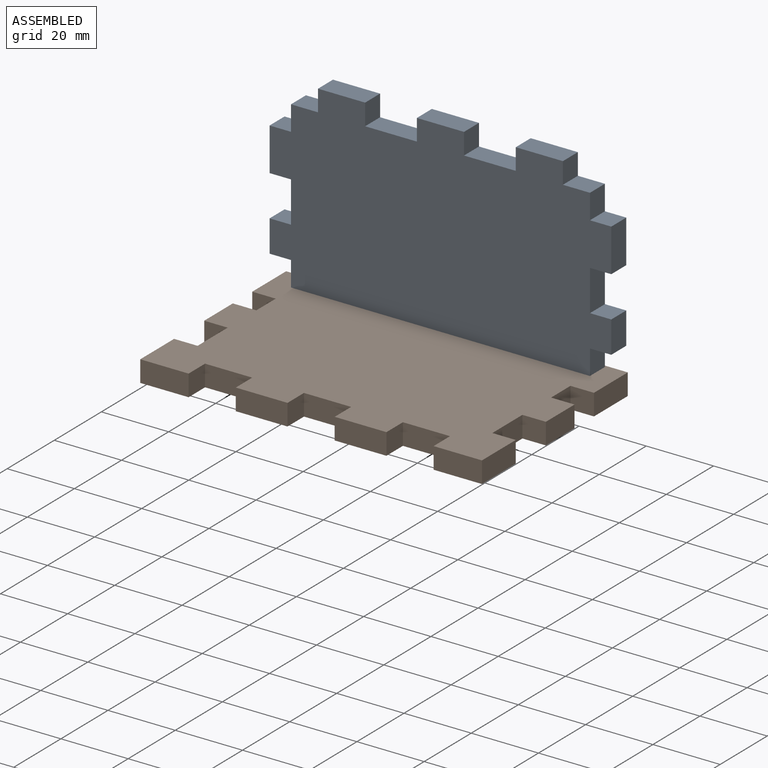
[diagram: assembled view]
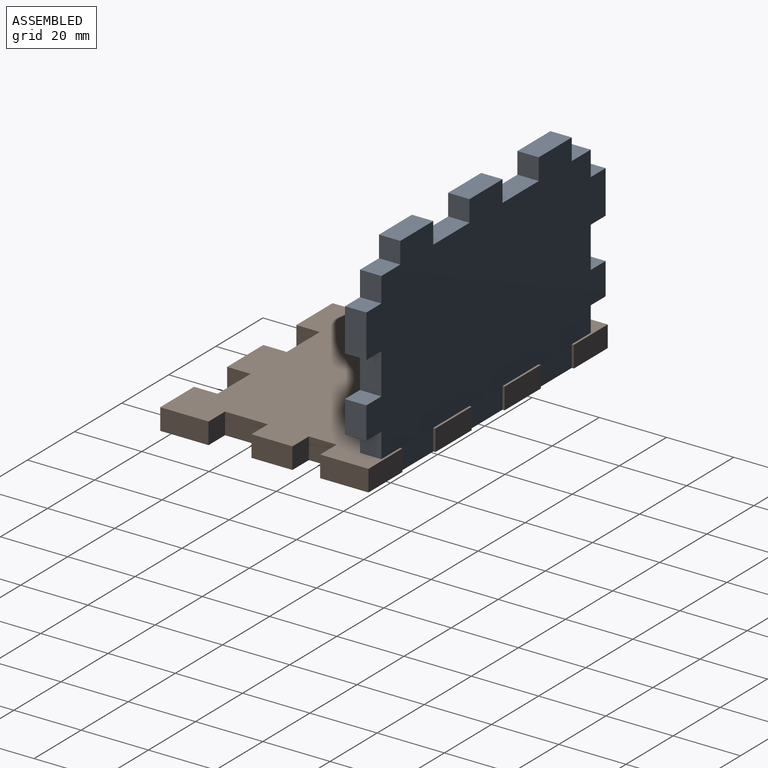
[diagram: assembled view, second angle]
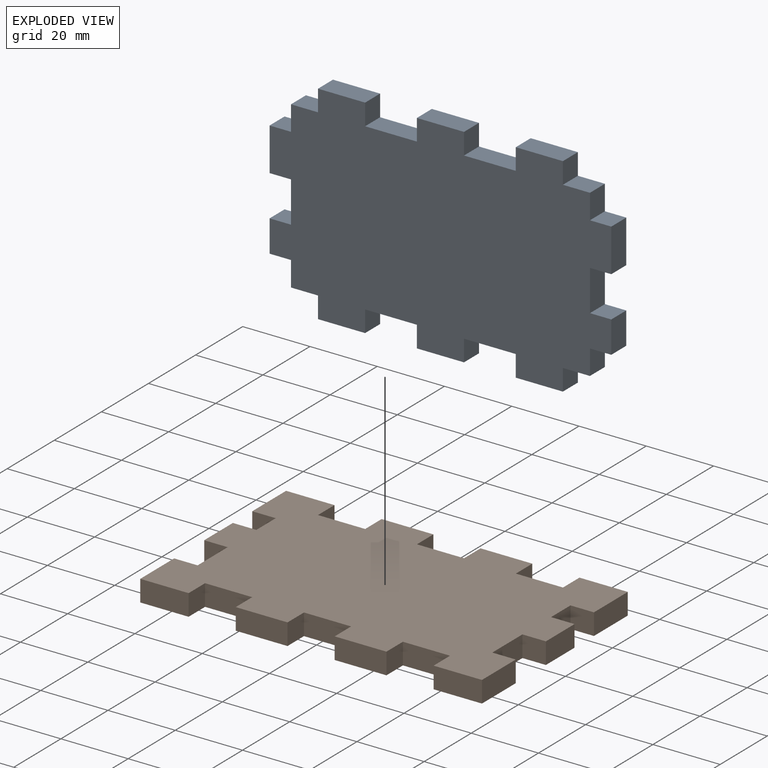
[diagram: exploded view]
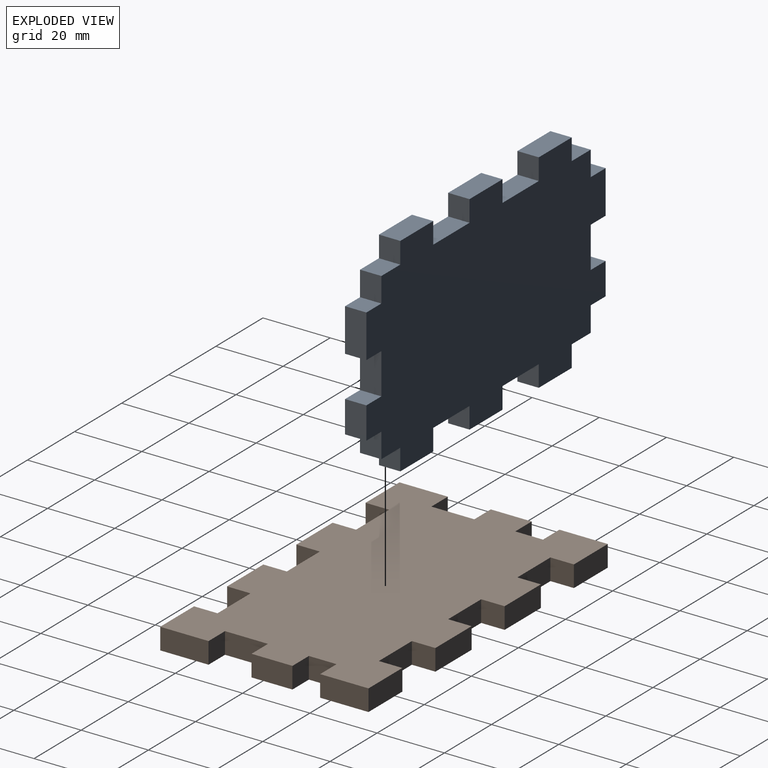
[diagram: exploded view, second angle]
ASSEMBLY  parts=2 mates=3
PART A: 46 faces, bbox 101.6x6.4x61.9 mm
  f0: plane 15.39x6.35mm, normal (0,0,-1), area 97.7mm2, adj f1,f43,f44,f45
  f1: plane 6.36x6.35mm, normal (-1,0,0), area 40.4mm2, adj f0,f2,f44,f45
  f2: plane 14.01x6.35mm, normal (0,0,-1), area 89mm2, adj f1,f3,f44,f45
  f3: plane 6.36x6.35mm, normal (1,0,0), area 40.4mm2, adj f2,f4,f44,f45
  f4: plane 8.04x6.35mm, normal (0,0,-1), area 51.1mm2, adj f3,f5,f44,f45
  f5: plane 7.39x6.35mm, normal (1,0,0), area 46.9mm2, adj f4,f6,f44,f45
  f6: plane 6.35x6.35mm, normal (0,0,-1), area 40.3mm2, adj f5,f7,f44,f45
  f7: plane 12.79x6.35mm, normal (1,0,0), area 81.2mm2, adj f6,f8,f44,f45
  f8: plane 6.35x6.35mm, normal (0,0,1), area 40.3mm2, adj f7,f9,f44,f45
  f9: plane 12.17x6.35mm, normal (1,0,0), area 77.3mm2, adj f8,f10,f44,f45
  f10: plane 6.35x6.35mm, normal (0,0,-1), area 40.3mm2, adj f9,f11,f44,f45
  f11: plane 9.49x6.35mm, normal (1,0,0), area 60.3mm2, adj f10,f12,f44,f45
  f12: plane 6.35x6.35mm, normal (0,0,1), area 40.3mm2, adj f11,f13,f44,f45
  f13: plane 7.39x6.35mm, normal (1,0,0), area 46.9mm2, adj f12,f14,f44,f45
  f14: plane 8.04x6.35mm, normal (0,0,1), area 51.1mm2, adj f13,f15,f44,f45
  f15: plane 6.36x6.35mm, normal (1,0,0), area 40.4mm2, adj f14,f16,f44,f45
  f16: plane 14.01x6.35mm, normal (0,0,1), area 89mm2, adj f15,f17,f44,f45
  f17: plane 6.36x6.35mm, normal (-1,0,0), area 40.4mm2, adj f16,f18,f44,f45
  f18: plane 15.39x6.35mm, normal (0,0,1), area 97.7mm2, adj f17,f19,f44,f45
  f19: plane 6.36x6.35mm, normal (1,0,0), area 40.4mm2, adj f18,f20,f44,f45
  f20: plane 14.01x6.35mm, normal (0,0,1), area 89mm2, adj f19,f21,f44,f45
  f21: plane 6.36x6.35mm, normal (-1,0,0), area 40.4mm2, adj f20,f22,f44,f45
  f22: plane 15.39x6.35mm, normal (0,0,1), area 97.7mm2, adj f21,f23,f44,f45
  f23: plane 6.36x6.35mm, normal (1,0,0), area 40.4mm2, adj f22,f24,f44,f45
  f24: plane 14.01x6.35mm, normal (0,0,1), area 89mm2, adj f23,f25,f44,f45
  f25: plane 6.36x6.35mm, normal (-1,0,0), area 40.4mm2, adj f24,f26,f44,f45
  f26: plane 8.04x6.35mm, normal (0,0,1), area 51.1mm2, adj f25,f27,f44,f45
  f27: plane 7.39x6.35mm, normal (-1,0,0), area 46.9mm2, adj f26,f28,f44,f45
  f28: plane 6.35x6.35mm, normal (0,0,1), area 40.3mm2, adj f27,f29,f44,f45
  f29: plane 9.49x6.35mm, normal (-1,0,0), area 60.3mm2, adj f28,f30,f44,f45
  f30: plane 6.35x6.35mm, normal (0,0,-1), area 40.3mm2, adj f29,f31,f44,f45
  f31: plane 12.17x6.35mm, normal (-1,0,0), area 77.3mm2, adj f30,f32,f44,f45
  f32: plane 6.35x6.35mm, normal (0,0,1), area 40.3mm2, adj f31,f33,f44,f45
  f33: plane 12.79x6.35mm, normal (-1,0,0), area 81.2mm2, adj f32,f34,f44,f45
  f34: plane 6.35x6.35mm, normal (0,0,-1), area 40.3mm2, adj f33,f35,f44,f45
  f35: plane 7.39x6.35mm, normal (-1,0,0), area 46.9mm2, adj f34,f36,f44,f45
  f36: plane 8.04x6.35mm, normal (0,0,-1), area 51.1mm2, adj f35,f37,f44,f45
  f37: plane 6.36x6.35mm, normal (-1,0,0), area 40.4mm2, adj f36,f38,f44,f45
  f38: plane 14.01x6.35mm, normal (0,0,-1), area 89mm2, adj f37,f39,f44,f45
  f39: plane 6.36x6.35mm, normal (1,0,0), area 40.4mm2, adj f38,f40,f44,f45
  f40: plane 15.39x6.35mm, normal (0,0,-1), area 97.7mm2, adj f39,f41,f44,f45
  f41: plane 6.36x6.35mm, normal (-1,0,0), area 40.4mm2, adj f40,f42,f44,f45
  f42: plane 14.01x6.35mm, normal (0,0,-1), area 89mm2, adj f41,f43,f44,f45
  f43: plane 6.36x6.35mm, normal (1,0,0), area 40.4mm2, adj f0,f42,f44,f45
  f44: plane 101.6x61.94mm, normal (0,-1,0), area 5193.2mm2, adj f0,f1,f2,f3,f4,f5,f6,f7
  f45: plane 101.6x61.94mm, normal (0,1,0), area 5193.2mm2, adj f0,f1,f2,f3,f4,f5,f6,f7
PART B: 46 faces, bbox 101.6x61.9x6.4 mm
  f0: plane 12.78x6.35mm, normal (-1,0,0), area 81.1mm2, adj f1,f43,f44,f45
  f1: plane 6.99x6.35mm, normal (0,1,0), area 44.4mm2, adj f0,f2,f44,f45
  f2: plane 14.38x6.35mm, normal (-1,0,0), area 91.3mm2, adj f1,f3,f44,f45
  f3: plane 14.38x6.35mm, normal (0,-1,0), area 91.3mm2, adj f2,f4,f44,f45
  f4: plane 6.99x6.35mm, normal (1,0,0), area 44.4mm2, adj f3,f5,f44,f45
  f5: plane 14.02x6.35mm, normal (0,-1,0), area 89mm2, adj f4,f6,f44,f45
  f6: plane 6.99x6.35mm, normal (-1,0,0), area 44.4mm2, adj f5,f7,f44,f45
  f7: plane 15.39x6.35mm, normal (0,-1,0), area 97.7mm2, adj f6,f8,f44,f45
  f8: plane 6.99x6.35mm, normal (1,0,0), area 44.4mm2, adj f7,f9,f44,f45
  f9: plane 14.02x6.35mm, normal (0,-1,0), area 89mm2, adj f8,f10,f44,f45
  f10: plane 6.99x6.35mm, normal (-1,0,0), area 44.4mm2, adj f9,f11,f44,f45
  f11: plane 15.39x6.35mm, normal (0,-1,0), area 97.7mm2, adj f10,f12,f44,f45
  f12: plane 6.99x6.35mm, normal (1,0,0), area 44.4mm2, adj f11,f13,f44,f45
  f13: plane 14.02x6.35mm, normal (0,-1,0), area 89mm2, adj f12,f14,f44,f45
  f14: plane 6.99x6.35mm, normal (-1,0,0), area 44.4mm2, adj f13,f15,f44,f45
  f15: plane 14.38x6.35mm, normal (0,-1,0), area 91.3mm2, adj f14,f16,f44,f45
  f16: plane 14.38x6.35mm, normal (1,0,0), area 91.3mm2, adj f15,f17,f44,f45
  f17: plane 6.99x6.35mm, normal (0,1,0), area 44.4mm2, adj f16,f18,f44,f45
  f18: plane 12.78x6.35mm, normal (1,0,0), area 81.1mm2, adj f17,f19,f44,f45
  f19: plane 6.99x6.35mm, normal (0,-1,0), area 44.4mm2, adj f18,f20,f44,f45
  f20: plane 12.17x6.35mm, normal (1,0,0), area 77.3mm2, adj f19,f21,f44,f45
  f21: plane 6.99x6.35mm, normal (0,1,0), area 44.4mm2, adj f20,f22,f44,f45
  f22: plane 8.24x6.35mm, normal (1,0,0), area 52.3mm2, adj f21,f23,f44,f45
  f23: plane 6.99x6.35mm, normal (0,-1,0), area 44.4mm2, adj f22,f24,f44,f45
  f24: plane 14.38x6.35mm, normal (1,0,0), area 91.3mm2, adj f23,f25,f44,f45
  f25: plane 14.38x6.35mm, normal (0,1,0), area 91.3mm2, adj f24,f26,f44,f45
  f26: plane 6.99x6.35mm, normal (-1,0,0), area 44.4mm2, adj f25,f27,f44,f45
  f27: plane 14.02x6.35mm, normal (0,1,0), area 89mm2, adj f26,f28,f44,f45
  f28: plane 6.99x6.35mm, normal (1,0,0), area 44.4mm2, adj f27,f29,f44,f45
  f29: plane 15.39x6.35mm, normal (0,1,0), area 97.7mm2, adj f28,f30,f44,f45
  f30: plane 6.99x6.35mm, normal (-1,0,0), area 44.4mm2, adj f29,f31,f44,f45
  f31: plane 14.02x6.35mm, normal (0,1,0), area 89mm2, adj f30,f32,f44,f45
  f32: plane 6.99x6.35mm, normal (1,0,0), area 44.4mm2, adj f31,f33,f44,f45
  f33: plane 15.39x6.35mm, normal (0,1,0), area 97.7mm2, adj f32,f34,f44,f45
  f34: plane 6.99x6.35mm, normal (-1,0,0), area 44.4mm2, adj f33,f35,f44,f45
  f35: plane 14.02x6.35mm, normal (0,1,0), area 89mm2, adj f34,f36,f44,f45
  f36: plane 6.99x6.35mm, normal (1,0,0), area 44.4mm2, adj f35,f37,f44,f45
  f37: plane 14.38x6.35mm, normal (0,1,0), area 91.3mm2, adj f36,f38,f44,f45
  f38: plane 14.38x6.35mm, normal (-1,0,0), area 91.3mm2, adj f37,f39,f44,f45
  f39: plane 6.99x6.35mm, normal (0,-1,0), area 44.4mm2, adj f38,f40,f44,f45
  f40: plane 8.24x6.35mm, normal (-1,0,0), area 52.3mm2, adj f39,f41,f44,f45
  f41: plane 6.99x6.35mm, normal (0,1,0), area 44.4mm2, adj f40,f42,f44,f45
  f42: plane 12.17x6.35mm, normal (-1,0,0), area 77.3mm2, adj f41,f43,f44,f45
  f43: plane 6.99x6.35mm, normal (0,-1,0), area 44.4mm2, adj f0,f42,f44,f45
  f44: plane 101.6x61.94mm, normal (0,0,1), area 5411.4mm2, adj f0,f1,f2,f3,f4,f5,f6,f7
  f45: plane 101.6x61.94mm, normal (0,0,-1), area 5411.4mm2, adj f0,f1,f2,f3,f4,f5,f6,f7
PLACE A rot(axis=(1,0,0),180deg) t=(-106.76,66.86,38.95)mm
PLACE B t=(-106.75,11.91,-22.98)mm
MATE planar A.f22 <-> B.f44  axis (0,0,-1) through (-70.66,70.03,-16.63)mm
MATE planar A.f45 <-> B.f35  axis (0,-1,0) through (-55.96,66.86,8.03)mm
MATE planar B.f36 <-> A.f25  axis (1,0,0) through (-92.37,70.35,-19.81)mm
